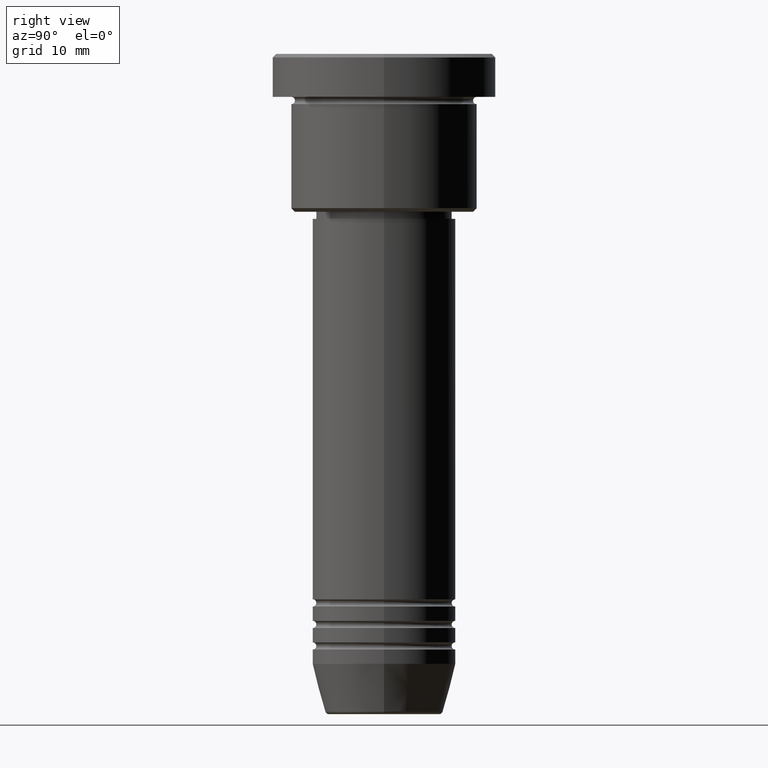
[diagram: clean part render]
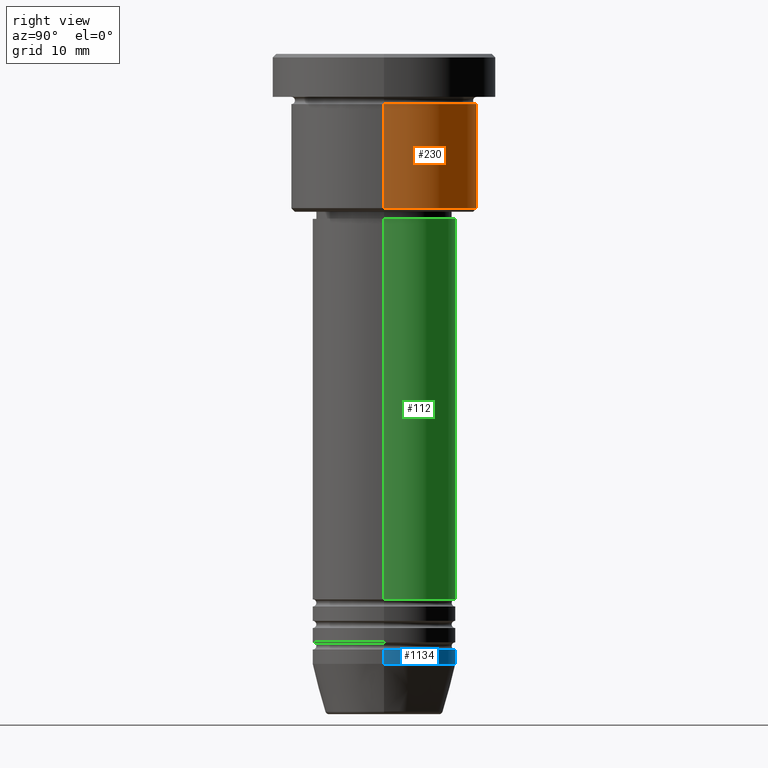
[diagram: same view with three faces highlighted in distinct colors, each labeled with its STEP entity id]
A machine part, right view with three faces highlighted in distinct colors.
Their STEP definitions:

[orange] entity #230 — the highlighted cylindrical surface (partial cylindrical patch) has radius 13 mm, axis along (-0, -0, 1).
#31 = CARTESIAN_POINT ( 'NONE',  ( 0.000000000000000000, 0.000000000000000000, 0.000000000000000000 ) ) ;
#96 = ORIENTED_EDGE ( 'NONE', *, *, #399, .T. ) ;
#104 = AXIS2_PLACEMENT_3D ( 'NONE', #31, #396, #214 ) ;
#142 = CIRCLE ( 'NONE', #509, 13.00000000000000000 ) ;
#159 = ORIENTED_EDGE ( 'NONE', *, *, #369, .T. ) ;
#214 = DIRECTION ( 'NONE',  ( 1.000000000000000000, 0.000000000000000000, 0.000000000000000000 ) ) ;
#227 = CARTESIAN_POINT ( 'NONE',  ( -13.00000000000000000, 1.592040838891559095E-15, -6.999999999999995559 ) ) ;
#230 = ADVANCED_FACE ( 'NONE', ( #936 ), #848, .T. ) ;
#232 = DIRECTION ( 'NONE',  ( -0.000000000000000000, -0.000000000000000000, 1.000000000000000000 ) ) ;
#238 = LINE ( 'NONE', #692, #471 ) ;
#264 = CARTESIAN_POINT ( 'NONE',  ( -13.00000000000000000, 1.592040838891559095E-15, -21.49999999999998579 ) ) ;
#299 = VERTEX_POINT ( 'NONE', #227 ) ;
#313 = CARTESIAN_POINT ( 'NONE',  ( 0.000000000000000000, 0.000000000000000000, -6.999999999999995559 ) ) ;
#345 = DIRECTION ( 'NONE',  ( -1.000000000000000000, 0.000000000000000000, 0.000000000000000000 ) ) ;
#369 = EDGE_CURVE ( 'NONE', #825, #299, #238, .T. ) ;
#396 = DIRECTION ( 'NONE',  ( -0.000000000000000000, -0.000000000000000000, 1.000000000000000000 ) ) ;
#399 = EDGE_CURVE ( 'NONE', #537, #825, #948, .T. ) ;
#403 = LINE ( 'NONE', #767, #1175 ) ;
#419 = DIRECTION ( 'NONE',  ( 1.000000000000000000, 0.000000000000000000, 0.000000000000000000 ) ) ;
#471 = VECTOR ( 'NONE', #621, 1000.000000000000000 ) ;
#488 = ORIENTED_EDGE ( 'NONE', *, *, #1121, .F. ) ;
#509 = AXIS2_PLACEMENT_3D ( 'NONE', #313, #608, #419 ) ;
#515 = AXIS2_PLACEMENT_3D ( 'NONE', #1054, #232, #345 ) ;
#537 = VERTEX_POINT ( 'NONE', #1090 ) ;
#608 = DIRECTION ( 'NONE',  ( -0.000000000000000000, -0.000000000000000000, 1.000000000000000000 ) ) ;
#618 = VERTEX_POINT ( 'NONE', #939 ) ;
#621 = DIRECTION ( 'NONE',  ( -0.000000000000000000, -0.000000000000000000, 1.000000000000000000 ) ) ;
#692 = CARTESIAN_POINT ( 'NONE',  ( -13.00000000000000000, 1.592040838891559095E-15, 0.000000000000000000 ) ) ;
#767 = CARTESIAN_POINT ( 'NONE',  ( 13.00000000000000000, 0.000000000000000000, 0.000000000000000000 ) ) ;
#798 = EDGE_CURVE ( 'NONE', #618, #299, #142, .T. ) ;
#825 = VERTEX_POINT ( 'NONE', #264 ) ;
#848 = CYLINDRICAL_SURFACE ( 'NONE', #104, 13.00000000000000000 ) ;
#936 = FACE_OUTER_BOUND ( 'NONE', #971, .T. ) ;
#939 = CARTESIAN_POINT ( 'NONE',  ( 13.00000000000000000, 0.000000000000000000, -6.999999999999995559 ) ) ;
#943 = DIRECTION ( 'NONE',  ( -0.000000000000000000, -0.000000000000000000, 1.000000000000000000 ) ) ;
#948 = CIRCLE ( 'NONE', #515, 13.00000000000000000 ) ;
#971 = EDGE_LOOP ( 'NONE', ( #96, #159, #1166, #488 ) ) ;
#1054 = CARTESIAN_POINT ( 'NONE',  ( 0.000000000000000000, 0.000000000000000000, -21.49999999999998579 ) ) ;
#1090 = CARTESIAN_POINT ( 'NONE',  ( 13.00000000000000000, 0.000000000000000000, -21.49999999999998579 ) ) ;
#1121 = EDGE_CURVE ( 'NONE', #537, #618, #403, .T. ) ;
#1166 = ORIENTED_EDGE ( 'NONE', *, *, #798, .F. ) ;
#1175 = VECTOR ( 'NONE', #943, 1000.000000000000000 ) ;

[blue] entity #1134 — the highlighted cylindrical surface (partial cylindrical patch) has radius 10 mm, axis along (-0, -0, 1).
#32 = EDGE_LOOP ( 'NONE', ( #51, #243, #93, #942 ) ) ;
#51 = ORIENTED_EDGE ( 'NONE', *, *, #661, .T. ) ;
#75 = DIRECTION ( 'NONE',  ( -0.000000000000000000, -0.000000000000000000, 1.000000000000000000 ) ) ;
#76 = EDGE_CURVE ( 'NONE', #620, #711, #667, .T. ) ;
#93 = ORIENTED_EDGE ( 'NONE', *, *, #76, .F. ) ;
#117 = CARTESIAN_POINT ( 'NONE',  ( 10.00000000000000000, 0.000000000000000000, -82.99999999999998579 ) ) ;
#127 = CIRCLE ( 'NONE', #1096, 10.00000000000000000 ) ;
#166 = EDGE_CURVE ( 'NONE', #1020, #711, #747, .T. ) ;
#204 = VECTOR ( 'NONE', #1131, 1000.000000000000000 ) ;
#243 = ORIENTED_EDGE ( 'NONE', *, *, #166, .T. ) ;
#358 = CARTESIAN_POINT ( 'NONE',  ( -10.00000000000000000, 1.224646799147353256E-15, -82.99999999999998579 ) ) ;
#379 = DIRECTION ( 'NONE',  ( 1.000000000000000000, 0.000000000000000000, 0.000000000000000000 ) ) ;
#388 = CARTESIAN_POINT ( 'NONE',  ( -10.00000000000000000, 1.224646799147353256E-15, 0.000000000000000000 ) ) ;
#392 = AXIS2_PLACEMENT_3D ( 'NONE', #804, #75, #965 ) ;
#448 = VECTOR ( 'NONE', #481, 1000.000000000000000 ) ;
#481 = DIRECTION ( 'NONE',  ( -0.000000000000000000, -0.000000000000000000, 1.000000000000000000 ) ) ;
#526 = VERTEX_POINT ( 'NONE', #1169 ) ;
#540 = CARTESIAN_POINT ( 'NONE',  ( 0.000000000000000000, 0.000000000000000000, -82.99999999999998579 ) ) ;
#620 = VERTEX_POINT ( 'NONE', #117 ) ;
#661 = EDGE_CURVE ( 'NONE', #526, #1020, #127, .T. ) ;
#663 = CARTESIAN_POINT ( 'NONE',  ( 0.000000000000000000, 0.000000000000000000, -84.99999999999998579 ) ) ;
#667 = CIRCLE ( 'NONE', #1176, 10.00000000000000000 ) ;
#711 = VERTEX_POINT ( 'NONE', #358 ) ;
#713 = EDGE_CURVE ( 'NONE', #526, #620, #1053, .T. ) ;
#747 = LINE ( 'NONE', #388, #448 ) ;
#762 = CARTESIAN_POINT ( 'NONE',  ( -10.00000000000000000, 1.224646799147353256E-15, -84.99999999999998579 ) ) ;
#790 = CYLINDRICAL_SURFACE ( 'NONE', #392, 10.00000000000000000 ) ;
#804 = CARTESIAN_POINT ( 'NONE',  ( 0.000000000000000000, 0.000000000000000000, 0.000000000000000000 ) ) ;
#817 = DIRECTION ( 'NONE',  ( 1.000000000000000000, 0.000000000000000000, 0.000000000000000000 ) ) ;
#895 = FACE_OUTER_BOUND ( 'NONE', #32, .T. ) ;
#898 = DIRECTION ( 'NONE',  ( -0.000000000000000000, -0.000000000000000000, 1.000000000000000000 ) ) ;
#942 = ORIENTED_EDGE ( 'NONE', *, *, #713, .F. ) ;
#965 = DIRECTION ( 'NONE',  ( 1.000000000000000000, 0.000000000000000000, 0.000000000000000000 ) ) ;
#1020 = VERTEX_POINT ( 'NONE', #762 ) ;
#1053 = LINE ( 'NONE', #1064, #204 ) ;
#1064 = CARTESIAN_POINT ( 'NONE',  ( 10.00000000000000000, 0.000000000000000000, 0.000000000000000000 ) ) ;
#1096 = AXIS2_PLACEMENT_3D ( 'NONE', #663, #1122, #379 ) ;
#1122 = DIRECTION ( 'NONE',  ( -0.000000000000000000, -0.000000000000000000, 1.000000000000000000 ) ) ;
#1131 = DIRECTION ( 'NONE',  ( -0.000000000000000000, -0.000000000000000000, 1.000000000000000000 ) ) ;
#1134 = ADVANCED_FACE ( 'NONE', ( #895 ), #790, .T. ) ;
#1169 = CARTESIAN_POINT ( 'NONE',  ( 10.00000000000000000, 0.000000000000000000, -84.99999999999998579 ) ) ;
#1176 = AXIS2_PLACEMENT_3D ( 'NONE', #540, #898, #817 ) ;

[green] entity #112 — the highlighted cylindrical surface (partial cylindrical patch) has radius 10 mm, axis along (-0, -0, 1).
#17 = CARTESIAN_POINT ( 'NONE',  ( -10.00000000000000000, 1.224646799147353256E-15, -75.99999999999997158 ) ) ;
#109 = DIRECTION ( 'NONE',  ( -0.000000000000000000, -0.000000000000000000, 1.000000000000000000 ) ) ;
#112 = ADVANCED_FACE ( 'NONE', ( #353 ), #1018, .T. ) ;
#114 = CARTESIAN_POINT ( 'NONE',  ( 0.000000000000000000, 0.000000000000000000, 0.000000000000000000 ) ) ;
#119 = CARTESIAN_POINT ( 'NONE',  ( 0.000000000000000000, 0.000000000000000000, -75.99999999999997158 ) ) ;
#141 = EDGE_CURVE ( 'NONE', #1015, #703, #468, .T. ) ;
#157 = CARTESIAN_POINT ( 'NONE',  ( 10.00000000000000000, 0.000000000000000000, -22.99999999999996447 ) ) ;
#205 = DIRECTION ( 'NONE',  ( -0.000000000000000000, -0.000000000000000000, 1.000000000000000000 ) ) ;
#275 = VERTEX_POINT ( 'NONE', #157 ) ;
#315 = VECTOR ( 'NONE', #452, 1000.000000000000000 ) ;
#353 = FACE_OUTER_BOUND ( 'NONE', #1162, .T. ) ;
#395 = DIRECTION ( 'NONE',  ( -0.000000000000000000, -0.000000000000000000, 1.000000000000000000 ) ) ;
#398 = LINE ( 'NONE', #508, #753 ) ;
#401 = DIRECTION ( 'NONE',  ( 1.000000000000000000, 0.000000000000000000, 0.000000000000000000 ) ) ;
#418 = CARTESIAN_POINT ( 'NONE',  ( 10.00000000000000000, 0.000000000000000000, -75.99999999999997158 ) ) ;
#430 = AXIS2_PLACEMENT_3D ( 'NONE', #828, #395, #759 ) ;
#452 = DIRECTION ( 'NONE',  ( -0.000000000000000000, -0.000000000000000000, 1.000000000000000000 ) ) ;
#468 = CIRCLE ( 'NONE', #966, 10.00000000000000000 ) ;
#508 = CARTESIAN_POINT ( 'NONE',  ( -10.00000000000000000, 1.224646799147353256E-15, 0.000000000000000000 ) ) ;
#530 = VERTEX_POINT ( 'NONE', #992 ) ;
#546 = CARTESIAN_POINT ( 'NONE',  ( 10.00000000000000000, 0.000000000000000000, 0.000000000000000000 ) ) ;
#645 = EDGE_CURVE ( 'NONE', #275, #530, #1044, .T. ) ;
#659 = DIRECTION ( 'NONE',  ( 1.000000000000000000, 0.000000000000000000, 0.000000000000000000 ) ) ;
#703 = VERTEX_POINT ( 'NONE', #17 ) ;
#744 = ORIENTED_EDGE ( 'NONE', *, *, #645, .F. ) ;
#753 = VECTOR ( 'NONE', #950, 1000.000000000000000 ) ;
#759 = DIRECTION ( 'NONE',  ( 1.000000000000000000, 0.000000000000000000, 0.000000000000000000 ) ) ;
#828 = CARTESIAN_POINT ( 'NONE',  ( 0.000000000000000000, 0.000000000000000000, -22.99999999999996447 ) ) ;
#947 = EDGE_CURVE ( 'NONE', #1015, #275, #1113, .T. ) ;
#950 = DIRECTION ( 'NONE',  ( -0.000000000000000000, -0.000000000000000000, 1.000000000000000000 ) ) ;
#966 = AXIS2_PLACEMENT_3D ( 'NONE', #119, #109, #659 ) ;
#973 = ORIENTED_EDGE ( 'NONE', *, *, #947, .F. ) ;
#984 = AXIS2_PLACEMENT_3D ( 'NONE', #114, #205, #401 ) ;
#992 = CARTESIAN_POINT ( 'NONE',  ( -10.00000000000000000, 1.224646799147353256E-15, -22.99999999999996447 ) ) ;
#1015 = VERTEX_POINT ( 'NONE', #418 ) ;
#1018 = CYLINDRICAL_SURFACE ( 'NONE', #984, 10.00000000000000000 ) ;
#1044 = CIRCLE ( 'NONE', #430, 10.00000000000000000 ) ;
#1059 = ORIENTED_EDGE ( 'NONE', *, *, #1074, .T. ) ;
#1074 = EDGE_CURVE ( 'NONE', #703, #530, #398, .T. ) ;
#1113 = LINE ( 'NONE', #546, #315 ) ;
#1162 = EDGE_LOOP ( 'NONE', ( #1181, #1059, #744, #973 ) ) ;
#1181 = ORIENTED_EDGE ( 'NONE', *, *, #141, .T. ) ;